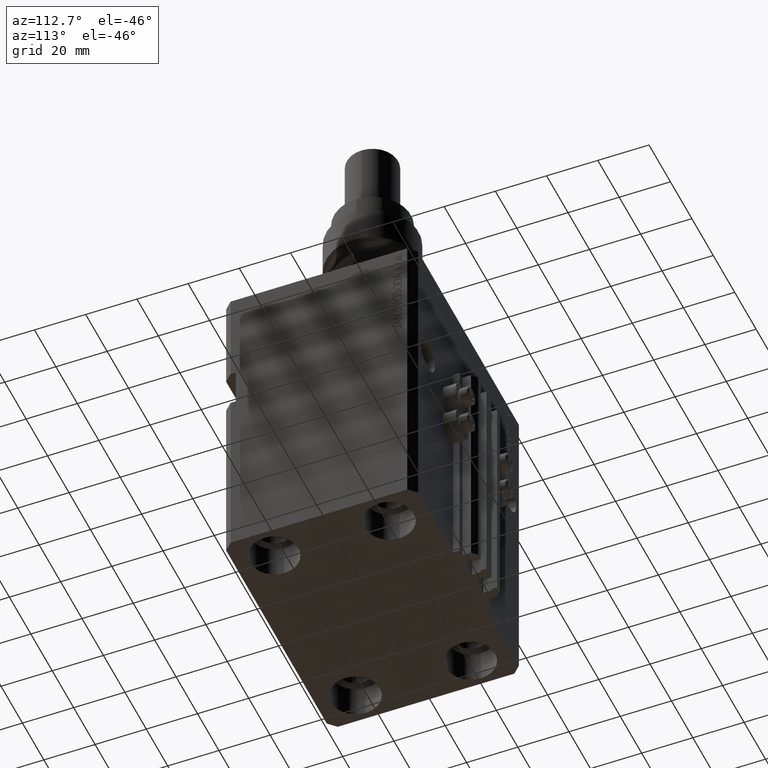
[diagram: clean part render]
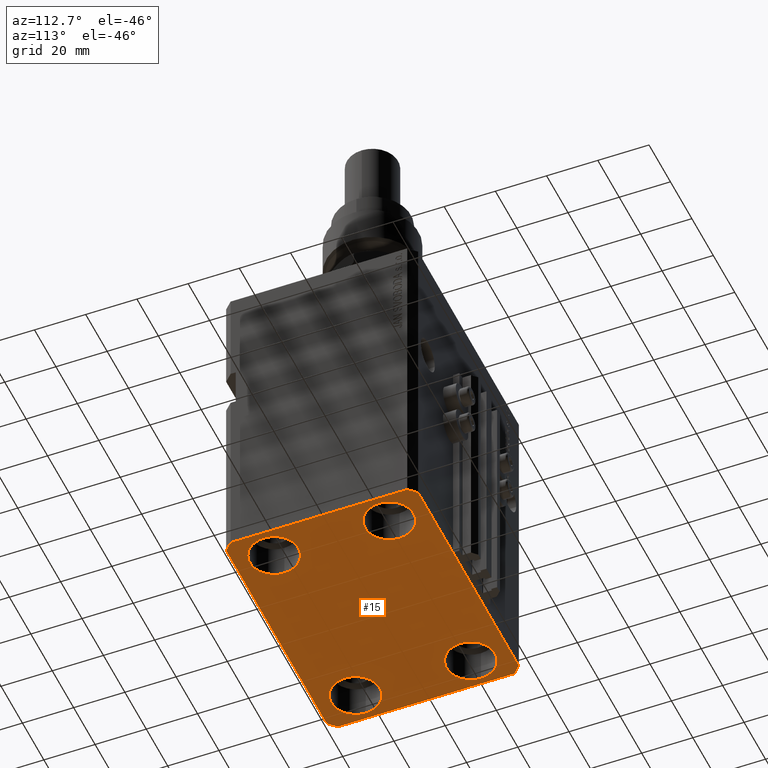
[diagram: same view with one face highlighted and labeled with its STEP entity id]
A machine part, auxiliary view. The second image highlights one B-rep face of the part: STEP entity #15.
In plain terms, the highlighted planar face has unit normal (0, 0, 1).
Its self-contained STEP definition (entity closure, byte-faithful):
#15 = ADVANCED_FACE ( 'NONE', ( #37185, #1945, #17517, #10119, #17779 ), #40773, .F. ) ;
#509 = ORIENTED_EDGE ( 'NONE', *, *, #32468, .F. ) ;
#708 = EDGE_CURVE ( 'NONE', #8777, #46108, #22582, .T. ) ;
#769 = DIRECTION ( 'NONE',  ( 7.441712302741091634E-15, 1.000000000000000000, 0.000000000000000000 ) ) ;
#826 = DIRECTION ( 'NONE',  ( -0.000000000000000000, -0.000000000000000000, 1.000000000000000000 ) ) ;
#1507 = ORIENTED_EDGE ( 'NONE', *, *, #47514, .F. ) ;
#1945 = FACE_BOUND ( 'NONE', #4174, .T. ) ;
#2198 = DIRECTION ( 'NONE',  ( 1.000000000000000000, 0.000000000000000000, -0.000000000000000000 ) ) ;
#2427 = VECTOR ( 'NONE', #31345, 1000.000000000000000 ) ;
#3230 = AXIS2_PLACEMENT_3D ( 'NONE', #4113, #19923, #19677 ) ;
#3838 = VERTEX_POINT ( 'NONE', #37743 ) ;
#4071 = ORIENTED_EDGE ( 'NONE', *, *, #11367, .F. ) ;
#4113 = CARTESIAN_POINT ( 'NONE',  ( 38.00000000000000711, -22.50000000000000000, -125.0000000000000000 ) ) ;
#4174 = EDGE_LOOP ( 'NONE', ( #39187, #31380 ) ) ;
#4546 = CIRCLE ( 'NONE', #50178, 9.500000000000001776 ) ;
#4914 = VERTEX_POINT ( 'NONE', #44931 ) ;
#5597 = CIRCLE ( 'NONE', #34135, 9.500000000000001776 ) ;
#5738 = CARTESIAN_POINT ( 'NONE',  ( 47.00000000000000000, -37.50000000000000711, -125.0000000000000000 ) ) ;
#5836 = LINE ( 'NONE', #21415, #50324 ) ;
#5984 = CARTESIAN_POINT ( 'NONE',  ( -38.00000000000000711, 22.50000000000000000, -125.0000000000000000 ) ) ;
#6782 = DIRECTION ( 'NONE',  ( 0.000000000000000000, 0.000000000000000000, 1.000000000000000000 ) ) ;
#6862 = CARTESIAN_POINT ( 'NONE',  ( -47.00000000000000000, -37.49999999999999289, -125.0000000000000000 ) ) ;
#6953 = AXIS2_PLACEMENT_3D ( 'NONE', #9007, #47326, #46817 ) ;
#7441 = EDGE_CURVE ( 'NONE', #42158, #4914, #46114, .T. ) ;
#7642 = CARTESIAN_POINT ( 'NONE',  ( -38.00000000000000711, -22.50000000000000000, -125.0000000000000000 ) ) ;
#8594 = VECTOR ( 'NONE', #21337, 1000.000000000000000 ) ;
#8777 = VERTEX_POINT ( 'NONE', #49216 ) ;
#8818 = VERTEX_POINT ( 'NONE', #17821 ) ;
#9007 = CARTESIAN_POINT ( 'NONE',  ( -38.00000000000000711, -22.50000000000000000, -125.0000000000000000 ) ) ;
#9592 = CARTESIAN_POINT ( 'NONE',  ( -47.00000000000001421, 37.50000000000000000, -125.0000000000000000 ) ) ;
#10119 = FACE_BOUND ( 'NONE', #35662, .T. ) ;
#10802 = DIRECTION ( 'NONE',  ( 0.7071067811865491270, -0.7071067811865459074, 0.000000000000000000 ) ) ;
#10986 = VERTEX_POINT ( 'NONE', #38989 ) ;
#11282 = EDGE_CURVE ( 'NONE', #19895, #43397, #4546, .T. ) ;
#11339 = CARTESIAN_POINT ( 'NONE',  ( 47.00000000000000000, -37.50000000000000711, -125.0000000000000000 ) ) ;
#11367 = EDGE_CURVE ( 'NONE', #20905, #8818, #44575, .T. ) ;
#11832 = EDGE_CURVE ( 'NONE', #4914, #42158, #20062, .T. ) ;
#13151 = LINE ( 'NONE', #5738, #16321 ) ;
#13525 = CARTESIAN_POINT ( 'NONE',  ( -47.00000000000001421, 37.50000000000000000, -125.0000000000000000 ) ) ;
#14817 = DIRECTION ( 'NONE',  ( 1.000000000000000000, 0.000000000000000000, 0.000000000000000000 ) ) ;
#15453 = CIRCLE ( 'NONE', #21975, 9.500000000000001776 ) ;
#15458 = EDGE_CURVE ( 'NONE', #8818, #46790, #5836, .T. ) ;
#15685 = DIRECTION ( 'NONE',  ( -0.000000000000000000, -0.000000000000000000, 1.000000000000000000 ) ) ;
#16321 = VECTOR ( 'NONE', #32788, 1000.000000000000000 ) ;
#16350 = CARTESIAN_POINT ( 'NONE',  ( -28.50000000000000355, 22.50000000000000000, -125.0000000000000000 ) ) ;
#16354 = LINE ( 'NONE', #31911, #42389 ) ;
#17274 = CARTESIAN_POINT ( 'NONE',  ( -47.00000000000000000, -37.49999999999999289, -125.0000000000000000 ) ) ;
#17517 = FACE_BOUND ( 'NONE', #20515, .T. ) ;
#17779 = FACE_OUTER_BOUND ( 'NONE', #31950, .T. ) ;
#17821 = CARTESIAN_POINT ( 'NONE',  ( -50.00000000000001421, 34.50000000000000000, -125.0000000000000000 ) ) ;
#17898 = LINE ( 'NONE', #43960, #34029 ) ;
#18387 = EDGE_LOOP ( 'NONE', ( #24649, #24475 ) ) ;
#19499 = DIRECTION ( 'NONE',  ( 1.000000000000000000, 0.000000000000000000, 0.000000000000000000 ) ) ;
#19582 = VERTEX_POINT ( 'NONE', #32208 ) ;
#19603 = EDGE_CURVE ( 'NONE', #10986, #3838, #15453, .T. ) ;
#19677 = DIRECTION ( 'NONE',  ( 1.000000000000000000, 0.000000000000000000, 0.000000000000000000 ) ) ;
#19895 = VERTEX_POINT ( 'NONE', #16350 ) ;
#19923 = DIRECTION ( 'NONE',  ( -0.000000000000000000, -0.000000000000000000, 1.000000000000000000 ) ) ;
#19964 = DIRECTION ( 'NONE',  ( 1.000000000000000000, 0.000000000000000000, 0.000000000000000000 ) ) ;
#20062 = CIRCLE ( 'NONE', #23306, 9.500000000000001776 ) ;
#20227 = DIRECTION ( 'NONE',  ( 1.000000000000000000, 0.000000000000000000, 0.000000000000000000 ) ) ;
#20346 = VERTEX_POINT ( 'NONE', #33609 ) ;
#20515 = EDGE_LOOP ( 'NONE', ( #41844, #35165 ) ) ;
#20726 = EDGE_CURVE ( 'NONE', #20346, #19582, #16354, .T. ) ;
#20905 = VERTEX_POINT ( 'NONE', #13525 ) ;
#20932 = EDGE_CURVE ( 'NONE', #25040, #21855, #41864, .T. ) ;
#21328 = EDGE_CURVE ( 'NONE', #21855, #20346, #13151, .T. ) ;
#21337 = DIRECTION ( 'NONE',  ( -0.7071067811865483499, -0.7071067811865466846, 0.000000000000000000 ) ) ;
#21415 = CARTESIAN_POINT ( 'NONE',  ( -50.00000000000001421, 34.50000000000000000, -125.0000000000000000 ) ) ;
#21526 = LINE ( 'NONE', #37100, #45130 ) ;
#21855 = VERTEX_POINT ( 'NONE', #11339 ) ;
#21975 = AXIS2_PLACEMENT_3D ( 'NONE', #40396, #826, #20227 ) ;
#22582 = CIRCLE ( 'NONE', #24202, 9.500000000000001776 ) ;
#23306 = AXIS2_PLACEMENT_3D ( 'NONE', #7642, #38808, #14817 ) ;
#23462 = EDGE_CURVE ( 'NONE', #46108, #8777, #47260, .T. ) ;
#23469 = ORIENTED_EDGE ( 'NONE', *, *, #15458, .F. ) ;
#23543 = CARTESIAN_POINT ( 'NONE',  ( 38.00000000000000711, -22.50000000000000000, -125.0000000000000000 ) ) ;
#24202 = AXIS2_PLACEMENT_3D ( 'NONE', #23543, #43975, #19964 ) ;
#24475 = ORIENTED_EDGE ( 'NONE', *, *, #11832, .T. ) ;
#24649 = ORIENTED_EDGE ( 'NONE', *, *, #7441, .T. ) ;
#25040 = VERTEX_POINT ( 'NONE', #17274 ) ;
#25302 = CIRCLE ( 'NONE', #39205, 9.500000000000001776 ) ;
#26399 = CARTESIAN_POINT ( 'NONE',  ( -47.50000000000000711, -22.50000000000000000, -125.0000000000000000 ) ) ;
#29708 = DIRECTION ( 'NONE',  ( -0.000000000000000000, -0.000000000000000000, 1.000000000000000000 ) ) ;
#29858 = AXIS2_PLACEMENT_3D ( 'NONE', #36930, #6782, #2198 ) ;
#30234 = CARTESIAN_POINT ( 'NONE',  ( -50.00000000000000000, -34.50000000000000000, -125.0000000000000000 ) ) ;
#31345 = DIRECTION ( 'NONE',  ( 1.000000000000000000, -1.476360405086644309E-16, 0.000000000000000000 ) ) ;
#31380 = ORIENTED_EDGE ( 'NONE', *, *, #708, .T. ) ;
#31527 = VERTEX_POINT ( 'NONE', #32735 ) ;
#31851 = ORIENTED_EDGE ( 'NONE', *, *, #11282, .T. ) ;
#31911 = CARTESIAN_POINT ( 'NONE',  ( 50.00000000000000000, -34.50000000000000711, -125.0000000000000000 ) ) ;
#31950 = EDGE_LOOP ( 'NONE', ( #1507, #36252, #50513, #42352, #42080, #509, #23469, #4071 ) ) ;
#32208 = CARTESIAN_POINT ( 'NONE',  ( 50.00000000000051870, 34.49999999999995026, -125.0000000000000000 ) ) ;
#32468 = EDGE_CURVE ( 'NONE', #46790, #25040, #21526, .T. ) ;
#32735 = CARTESIAN_POINT ( 'NONE',  ( 47.00000000000056843, 37.49999999999999289, -125.0000000000000000 ) ) ;
#32788 = DIRECTION ( 'NONE',  ( 0.7071067811865483499, 0.7071067811865466846, 0.000000000000000000 ) ) ;
#32979 = CARTESIAN_POINT ( 'NONE',  ( 28.50000000000000355, -22.50000000000000000, -125.0000000000000000 ) ) ;
#33057 = DIRECTION ( 'NONE',  ( -0.000000000000000000, -0.000000000000000000, 1.000000000000000000 ) ) ;
#33609 = CARTESIAN_POINT ( 'NONE',  ( 50.00000000000000000, -34.50000000000000711, -125.0000000000000000 ) ) ;
#34029 = VECTOR ( 'NONE', #40637, 1000.000000000000114 ) ;
#34135 = AXIS2_PLACEMENT_3D ( 'NONE', #46581, #15685, #19499 ) ;
#35165 = ORIENTED_EDGE ( 'NONE', *, *, #46867, .T. ) ;
#35662 = EDGE_LOOP ( 'NONE', ( #45121, #31851 ) ) ;
#36252 = ORIENTED_EDGE ( 'NONE', *, *, #43595, .F. ) ;
#36930 = CARTESIAN_POINT ( 'NONE',  ( 0.000000000000000000, 0.000000000000000000, -125.0000000000000000 ) ) ;
#36988 = DIRECTION ( 'NONE',  ( 2.011273595335428326E-16, -1.000000000000000000, 0.000000000000000000 ) ) ;
#37100 = CARTESIAN_POINT ( 'NONE',  ( -50.00000000000000000, -34.50000000000000000, -125.0000000000000000 ) ) ;
#37143 = DIRECTION ( 'NONE',  ( 1.000000000000000000, 0.000000000000000000, 0.000000000000000000 ) ) ;
#37185 = FACE_BOUND ( 'NONE', #18387, .T. ) ;
#37743 = CARTESIAN_POINT ( 'NONE',  ( 47.50000000000000711, 22.50000000000001421, -125.0000000000000000 ) ) ;
#38382 = CARTESIAN_POINT ( 'NONE',  ( -47.50000000000000711, 22.50000000000000000, -125.0000000000000000 ) ) ;
#38808 = DIRECTION ( 'NONE',  ( -0.000000000000000000, -0.000000000000000000, 1.000000000000000000 ) ) ;
#38989 = CARTESIAN_POINT ( 'NONE',  ( 28.50000000000000355, 22.50000000000001421, -125.0000000000000000 ) ) ;
#39187 = ORIENTED_EDGE ( 'NONE', *, *, #23462, .T. ) ;
#39205 = AXIS2_PLACEMENT_3D ( 'NONE', #5984, #29708, #37143 ) ;
#39833 = DIRECTION ( 'NONE',  ( -1.000000000000000000, 7.381802025433175941E-17, 0.000000000000000000 ) ) ;
#40085 = CARTESIAN_POINT ( 'NONE',  ( 47.00000000000056843, 37.49999999999999289, -125.0000000000000000 ) ) ;
#40396 = CARTESIAN_POINT ( 'NONE',  ( 38.00000000000000711, 22.50000000000001421, -125.0000000000000000 ) ) ;
#40637 = DIRECTION ( 'NONE',  ( -0.7071067811865361374, 0.7071067811865588970, 0.000000000000000000 ) ) ;
#40773 = PLANE ( 'NONE',  #29858 ) ;
#41844 = ORIENTED_EDGE ( 'NONE', *, *, #19603, .T. ) ;
#41864 = LINE ( 'NONE', #6862, #2427 ) ;
#42080 = ORIENTED_EDGE ( 'NONE', *, *, #20932, .F. ) ;
#42158 = VERTEX_POINT ( 'NONE', #26399 ) ;
#42352 = ORIENTED_EDGE ( 'NONE', *, *, #21328, .F. ) ;
#42389 = VECTOR ( 'NONE', #769, 1000.000000000000000 ) ;
#43397 = VERTEX_POINT ( 'NONE', #38382 ) ;
#43595 = EDGE_CURVE ( 'NONE', #19582, #31527, #17898, .T. ) ;
#43913 = LINE ( 'NONE', #40085, #44783 ) ;
#43960 = CARTESIAN_POINT ( 'NONE',  ( 50.00000000000051870, 34.49999999999995026, -125.0000000000000000 ) ) ;
#43975 = DIRECTION ( 'NONE',  ( -0.000000000000000000, -0.000000000000000000, 1.000000000000000000 ) ) ;
#44575 = LINE ( 'NONE', #9592, #8594 ) ;
#44783 = VECTOR ( 'NONE', #39833, 1000.000000000000000 ) ;
#44931 = CARTESIAN_POINT ( 'NONE',  ( -28.50000000000000355, -22.50000000000000000, -125.0000000000000000 ) ) ;
#45121 = ORIENTED_EDGE ( 'NONE', *, *, #50051, .T. ) ;
#45130 = VECTOR ( 'NONE', #10802, 1000.000000000000114 ) ;
#46108 = VERTEX_POINT ( 'NONE', #32979 ) ;
#46114 = CIRCLE ( 'NONE', #6953, 9.500000000000001776 ) ;
#46581 = CARTESIAN_POINT ( 'NONE',  ( 38.00000000000000711, 22.50000000000001421, -125.0000000000000000 ) ) ;
#46790 = VERTEX_POINT ( 'NONE', #30234 ) ;
#46817 = DIRECTION ( 'NONE',  ( 1.000000000000000000, 0.000000000000000000, 0.000000000000000000 ) ) ;
#46867 = EDGE_CURVE ( 'NONE', #3838, #10986, #5597, .T. ) ;
#47260 = CIRCLE ( 'NONE', #3230, 9.500000000000001776 ) ;
#47326 = DIRECTION ( 'NONE',  ( -0.000000000000000000, -0.000000000000000000, 1.000000000000000000 ) ) ;
#47514 = EDGE_CURVE ( 'NONE', #31527, #20905, #43913, .T. ) ;
#48907 = DIRECTION ( 'NONE',  ( 1.000000000000000000, 0.000000000000000000, 0.000000000000000000 ) ) ;
#49150 = CARTESIAN_POINT ( 'NONE',  ( -38.00000000000000711, 22.50000000000000000, -125.0000000000000000 ) ) ;
#49216 = CARTESIAN_POINT ( 'NONE',  ( 47.50000000000000711, -22.50000000000000000, -125.0000000000000000 ) ) ;
#50051 = EDGE_CURVE ( 'NONE', #43397, #19895, #25302, .T. ) ;
#50178 = AXIS2_PLACEMENT_3D ( 'NONE', #49150, #33057, #48907 ) ;
#50324 = VECTOR ( 'NONE', #36988, 1000.000000000000000 ) ;
#50513 = ORIENTED_EDGE ( 'NONE', *, *, #20726, .F. ) ;